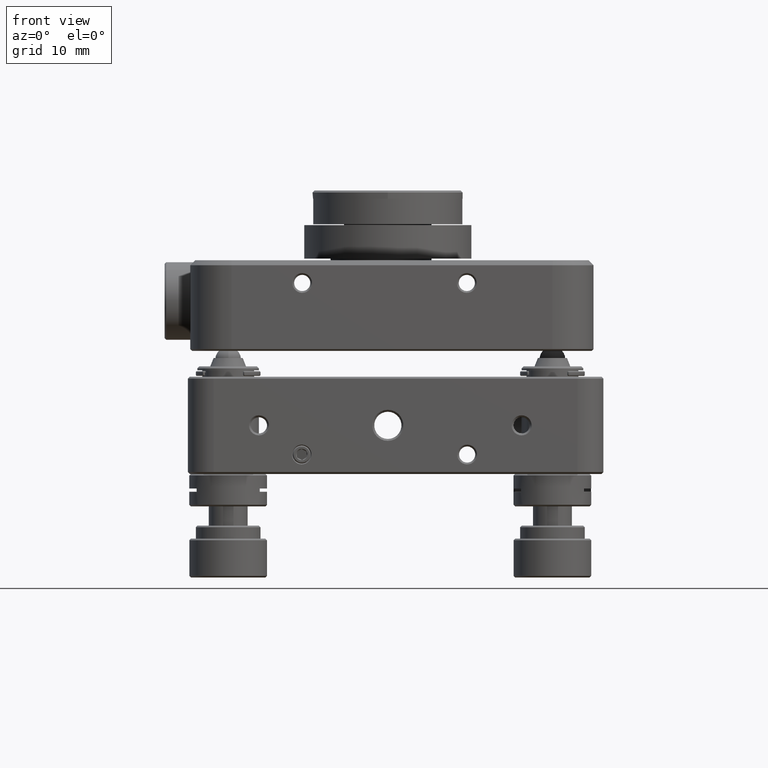
[diagram: clean part render]
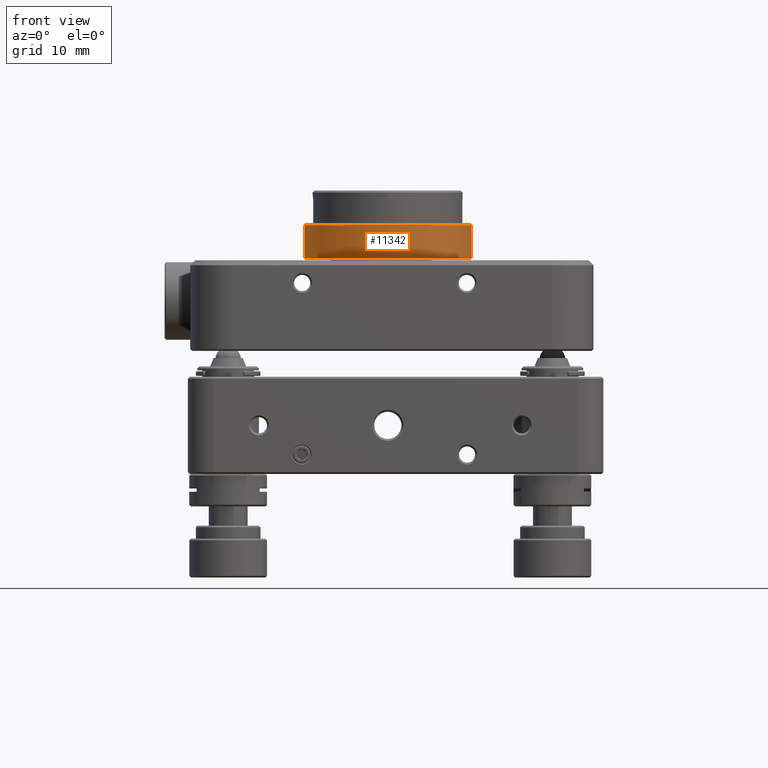
[diagram: same view with one face highlighted and labeled with its STEP entity id]
A machine part, front view. The second image highlights one B-rep face of the part: STEP entity #11342.
In plain terms, the highlighted cylindrical surface (partial cylindrical patch) has radius 12.8905 mm, axis along (-0, -0, 1).
Its self-contained STEP definition (entity closure, byte-faithful):
#807 = VERTEX_POINT ( 'NONE', #14101 ) ;
#838 = DIRECTION ( 'NONE',  ( 1.000000000000000000, -1.682172409891787747E-16, 0.0000000000000000000 ) ) ;
#1160 = CIRCLE ( 'NONE', #3982, 12.89049999999999940 ) ;
#1302 = CARTESIAN_POINT ( 'NONE',  ( 15.43050000000000033, -2.540000000000000036, 8.698999999999999844 ) ) ;
#1550 = DIRECTION ( 'NONE',  ( -3.697785493223495027E-32, -1.110223024625155924E-16, 1.000000000000000000 ) ) ;
#1748 = EDGE_LOOP ( 'NONE', ( #15972, #3464, #3412, #15919 ) ) ;
#2091 = EDGE_CURVE ( 'NONE', #5978, #15176, #12273, .T. ) ;
#3096 = CARTESIAN_POINT ( 'NONE',  ( 15.43050000000000033, -2.540000000000000036, 13.88059999999999938 ) ) ;
#3315 = LINE ( 'NONE', #18452, #13767 ) ;
#3412 = ORIENTED_EDGE ( 'NONE', *, *, #4818, .T. ) ;
#3464 = ORIENTED_EDGE ( 'NONE', *, *, #11555, .T. ) ;
#3644 = AXIS2_PLACEMENT_3D ( 'NONE', #19071, #17431, #838 ) ;
#3747 = DIRECTION ( 'NONE',  ( 0.0000000000000000000, 0.0000000000000000000, 1.000000000000000000 ) ) ;
#3911 = EDGE_CURVE ( 'NONE', #807, #5978, #3315, .T. ) ;
#3982 = AXIS2_PLACEMENT_3D ( 'NONE', #17976, #8028, #19940 ) ;
#4538 = DIRECTION ( 'NONE',  ( -3.697785493223495027E-32, -1.110223024625155924E-16, 1.000000000000000000 ) ) ;
#4818 = EDGE_CURVE ( 'NONE', #12929, #15176, #7754, .T. ) ;
#5978 = VERTEX_POINT ( 'NONE', #12769 ) ;
#6196 = VECTOR ( 'NONE', #4538, 1000.000000000000000 ) ;
#6986 = AXIS2_PLACEMENT_3D ( 'NONE', #20748, #3747, #8842 ) ;
#7274 = CYLINDRICAL_SURFACE ( 'NONE', #3644, 12.89049999999999940 ) ;
#7754 = LINE ( 'NONE', #20896, #6196 ) ;
#8028 = DIRECTION ( 'NONE',  ( -1.867586540851049737E-32, -1.110223024625155924E-16, 1.000000000000000000 ) ) ;
#8842 = DIRECTION ( 'NONE',  ( 1.000000000000000000, 0.0000000000000000000, 0.0000000000000000000 ) ) ;
#8930 = FACE_OUTER_BOUND ( 'NONE', #1748, .T. ) ;
#11342 = ADVANCED_FACE ( 'NONE', ( #8930 ), #7274, .T. ) ;
#11555 = EDGE_CURVE ( 'NONE', #807, #12929, #1160, .T. ) ;
#12273 = CIRCLE ( 'NONE', #6986, 12.89049999999999940 ) ;
#12769 = CARTESIAN_POINT ( 'NONE',  ( -10.35050000000000026, -2.540000000000000036, 13.88059999999999938 ) ) ;
#12929 = VERTEX_POINT ( 'NONE', #1302 ) ;
#13767 = VECTOR ( 'NONE', #1550, 1000.000000000000000 ) ;
#14101 = CARTESIAN_POINT ( 'NONE',  ( -10.35050000000000026, -2.540000000000000036, 8.698999999999999844 ) ) ;
#15176 = VERTEX_POINT ( 'NONE', #3096 ) ;
#15919 = ORIENTED_EDGE ( 'NONE', *, *, #2091, .F. ) ;
#15972 = ORIENTED_EDGE ( 'NONE', *, *, #3911, .F. ) ;
#17431 = DIRECTION ( 'NONE',  ( -1.867586540851049737E-32, -1.110223024625155924E-16, 1.000000000000000000 ) ) ;
#17976 = CARTESIAN_POINT ( 'NONE',  ( 2.540000000000000036, -2.540000000000000036, 8.698999999999999844 ) ) ;
#18452 = CARTESIAN_POINT ( 'NONE',  ( -10.35050000000000026, -2.540000000000000036, 6.540000000000000924 ) ) ;
#19071 = CARTESIAN_POINT ( 'NONE',  ( 2.540000000000000036, -2.540000000000000036, 6.540000000000000924 ) ) ;
#19940 = DIRECTION ( 'NONE',  ( 1.000000000000000000, -1.682172409891787747E-16, 0.0000000000000000000 ) ) ;
#20748 = CARTESIAN_POINT ( 'NONE',  ( 2.540000000000000036, -2.540000000000000036, 13.88059999999999938 ) ) ;
#20896 = CARTESIAN_POINT ( 'NONE',  ( 15.43050000000000033, -2.540000000000000036, 6.540000000000000924 ) ) ;